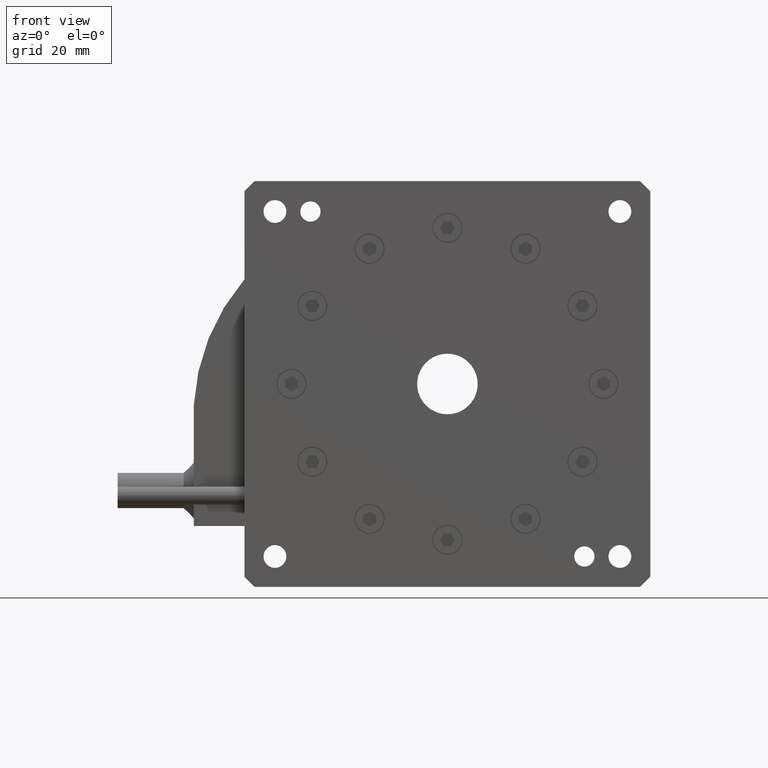
[diagram: clean part render]
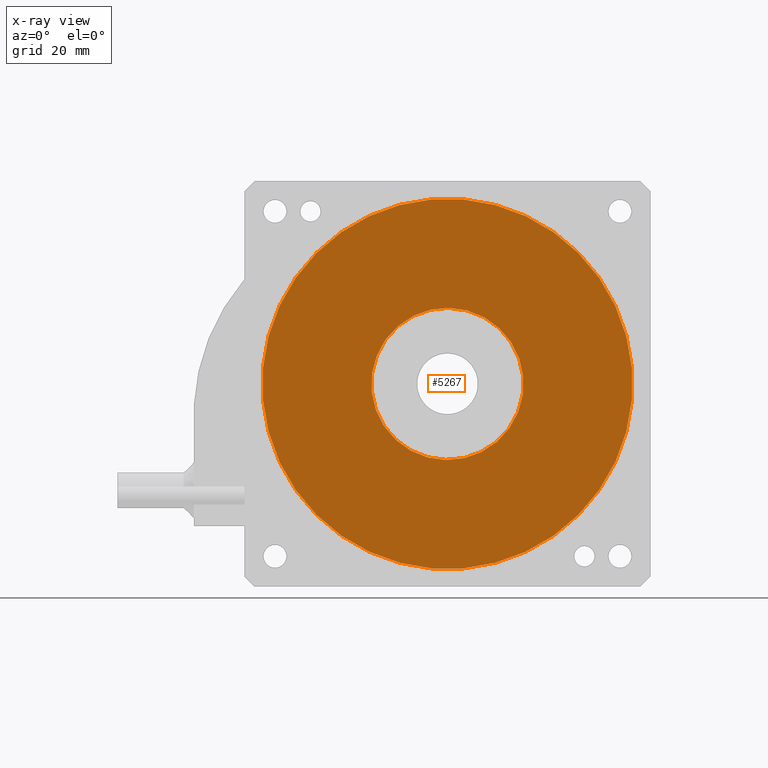
[diagram: x-ray — body ghosted, one internal face saturated and labeled with its STEP entity id]
A machine part, front view, then the same camera in x-ray: the body is ghosted and one INTERNAL B-rep face — a face not visible from any outside direction — is saturated and labeled: STEP entity #5267.
In plain terms, the highlighted planar face has unit normal (0, -1, 0).
Its self-contained STEP definition (entity closure, byte-faithful):
#139 = CIRCLE ( 'NONE', #21917, 36.50000000000000000 ) ;
#898 = ORIENTED_EDGE ( 'NONE', *, *, #2587, .T. ) ;
#1513 = CARTESIAN_POINT ( 'NONE',  ( 40.00000000000004300, 38.89999999999996300, 39.99999999999997900 ) ) ;
#2065 = VERTEX_POINT ( 'NONE', #18339 ) ;
#2587 = EDGE_CURVE ( 'NONE', #2065, #6378, #5745, .T. ) ;
#3577 = CARTESIAN_POINT ( 'NONE',  ( 49.44689514624219800, 38.89999999999996300, 75.25629265955093700 ) ) ;
#5267 = ADVANCED_FACE ( 'NONE', ( #11901, #14745 ), #21910, .T. ) ;
#5745 = CIRCLE ( 'NONE', #25257, 36.50000000000000000 ) ;
#6267 = ORIENTED_EDGE ( 'NONE', *, *, #25019, .T. ) ;
#6378 = VERTEX_POINT ( 'NONE', #3577 ) ;
#7102 = CARTESIAN_POINT ( 'NONE',  ( 36.11771432346216700, 38.89999999999996300, 25.51111260566397100 ) ) ;
#7107 = EDGE_LOOP ( 'NONE', ( #22776, #898 ) ) ;
#8092 = DIRECTION ( 'NONE',  ( 0.2588190451025248500, 1.083240632376026300E-030, 0.9659258262890670900 ) ) ;
#9177 = ORIENTED_EDGE ( 'NONE', *, *, #12823, .T. ) ;
#9424 = DIRECTION ( 'NONE',  ( -0.2588190451025249000, 0.0000000000000000000, -0.9659258262890672000 ) ) ;
#9506 = DIRECTION ( 'NONE',  ( -1.157774506412518600E-031, 1.000000000000000000, -1.090430749950198800E-030 ) ) ;
#9581 = DIRECTION ( 'NONE',  ( -0.2588190451025249000, 0.0000000000000000000, -0.9659258262890672000 ) ) ;
#9606 = EDGE_CURVE ( 'NONE', #6378, #2065, #139, .T. ) ;
#10592 = EDGE_LOOP ( 'NONE', ( #6267, #9177 ) ) ;
#10632 = CARTESIAN_POINT ( 'NONE',  ( 40.00000000000004300, 38.89999999999996300, 39.99999999999997900 ) ) ;
#11901 = FACE_BOUND ( 'NONE', #10592, .T. ) ;
#11972 = DIRECTION ( 'NONE',  ( 1.157774506412518600E-031, -1.000000000000000000, 1.090430749950198800E-030 ) ) ;
#12031 = AXIS2_PLACEMENT_3D ( 'NONE', #19481, #23593, #9581 ) ;
#12823 = EDGE_CURVE ( 'NONE', #15252, #20916, #21243, .T. ) ;
#12853 = DIRECTION ( 'NONE',  ( 0.2588190451025247900, 0.0000000000000000000, 0.9659258262890672000 ) ) ;
#13575 = AXIS2_PLACEMENT_3D ( 'NONE', #1513, #9506, #9424 ) ;
#13869 = CIRCLE ( 'NONE', #12031, 15.00000000000000000 ) ;
#13995 = CARTESIAN_POINT ( 'NONE',  ( 40.00000000000004300, 38.89999999999996300, 39.99999999999997900 ) ) ;
#14745 = FACE_OUTER_BOUND ( 'NONE', #7107, .T. ) ;
#15252 = VERTEX_POINT ( 'NONE', #20334 ) ;
#17904 = DIRECTION ( 'NONE',  ( 1.157774506412518600E-031, -1.000000000000000000, 1.090430749950198600E-030 ) ) ;
#18339 = CARTESIAN_POINT ( 'NONE',  ( 30.55310485375788000, 38.89999999999996300, 4.743707340449029500 ) ) ;
#19481 = CARTESIAN_POINT ( 'NONE',  ( 40.00000000000004300, 38.89999999999996300, 39.99999999999997900 ) ) ;
#19982 = CARTESIAN_POINT ( 'NONE',  ( 40.00000000000004300, 38.89999999999996300, 39.99999999999997900 ) ) ;
#20334 = CARTESIAN_POINT ( 'NONE',  ( 43.88228567653791900, 38.89999999999996300, 54.48888739433599000 ) ) ;
#20916 = VERTEX_POINT ( 'NONE', #7102 ) ;
#21243 = CIRCLE ( 'NONE', #13575, 15.00000000000000000 ) ;
#21910 = PLANE ( 'NONE',  #23555 ) ;
#21917 = AXIS2_PLACEMENT_3D ( 'NONE', #10632, #24696, #12853 ) ;
#22776 = ORIENTED_EDGE ( 'NONE', *, *, #9606, .T. ) ;
#23555 = AXIS2_PLACEMENT_3D ( 'NONE', #19982, #17904, #8092 ) ;
#23593 = DIRECTION ( 'NONE',  ( -1.157774506412518600E-031, 1.000000000000000000, -1.090430749950198800E-030 ) ) ;
#24080 = DIRECTION ( 'NONE',  ( 0.2588190451025247900, 0.0000000000000000000, 0.9659258262890672000 ) ) ;
#24696 = DIRECTION ( 'NONE',  ( 1.157774506412518600E-031, -1.000000000000000000, 1.090430749950198800E-030 ) ) ;
#25019 = EDGE_CURVE ( 'NONE', #20916, #15252, #13869, .T. ) ;
#25257 = AXIS2_PLACEMENT_3D ( 'NONE', #13995, #11972, #24080 ) ;